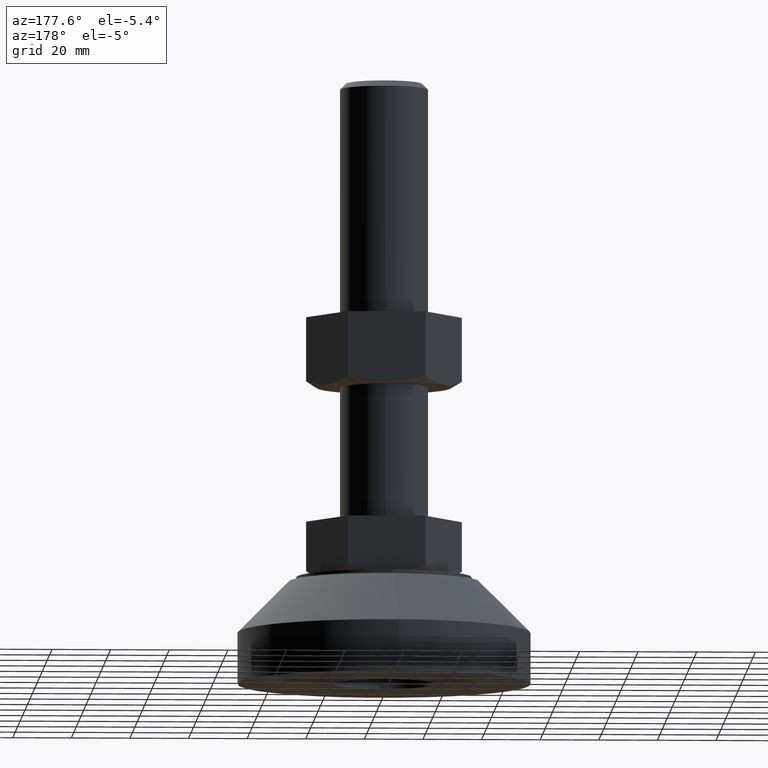
[diagram: clean part render]
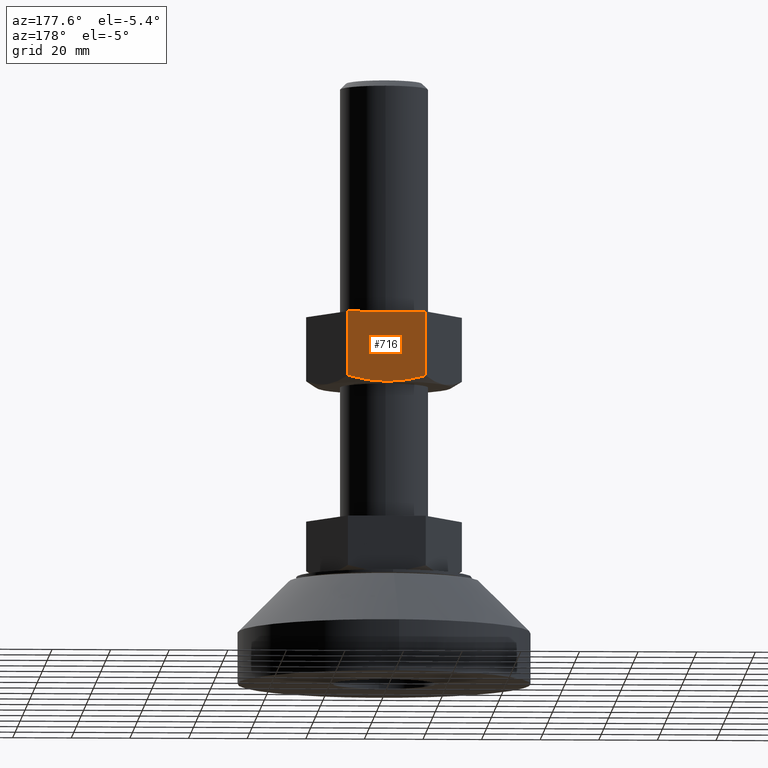
[diagram: same view with one face highlighted and labeled with its STEP entity id]
A machine part, auxiliary view. The second image highlights one B-rep face of the part: STEP entity #716.
In plain terms, the highlighted face is a freeform B-spline surface patch.
Its self-contained STEP definition (entity closure, byte-faithful):
#224=CARTESIAN_POINT('',(2.042810E-013,23.000000000623249,101.500000000000000));
#225=VERTEX_POINT('',#224);
#455=CARTESIAN_POINT('',(13.279056191221340,23.000000000001101,103.554277141584390));
#456=VERTEX_POINT('',#455);
#457=CARTESIAN_POINT('',(13.279056191221340,23.000000000001101,103.554277141584390));
#458=CARTESIAN_POINT('',(12.205800248851240,23.000000000000352,103.244454837966300));
#459=CARTESIAN_POINT('',(11.125465257783240,23.000000000000352,102.960680903132800));
#460=CARTESIAN_POINT('',(8.947244764019910,23.000000000000352,102.457712642780390));
#461=CARTESIAN_POINT('',(7.849348172439583,23.000000000000359,102.238559120394400));
#462=CARTESIAN_POINT('',(6.186543639268784,23.000000000000352,101.968554628545310));
#463=CARTESIAN_POINT('',(5.351149180212969,23.000000000000341,101.848242223892600));
#464=CARTESIAN_POINT('',(4.509252360460251,23.000000000000359,101.751856182319600));
#465=CARTESIAN_POINT('',(3.946488721711113,23.000000000000359,101.693114944886700));
#466=CARTESIAN_POINT('',(3.664036735735808,23.000000000000359,101.666477430208700));
#467=CARTESIAN_POINT('',(2.252219217077328,23.000000000000359,101.547906682500200));
#468=CARTESIAN_POINT('',(1.126312481440901,23.000000000000359,101.500112880030400));
#469=CARTESIAN_POINT('',(0.002666415532071,23.000000000000359,101.500000066566700));
#470=CARTESIAN_POINT('',(0.001333205666001,23.000000000000359,101.499999999971490));
#471=CARTESIAN_POINT('',(8.691602E-010,23.000000000000359,101.500000000631200));
#472=B_SPLINE_CURVE_WITH_KNOTS('',3,(#457,#458,#459,#460,#461,#462,#463,#464,#465,#466,#467,#468,#469,#470,#471),.UNSPECIFIED.,.F.,.U.,(4,2,2,1,2,2,2,4),(0.499851510328155,0.624851510328155,0.749851510328155,0.812351510328155,0.843601510328155,0.874851510328154,0.999851510328154,1.0),.UNSPECIFIED.);
#473=EDGE_CURVE('',#456,#225,#472,.T.);
#508=CARTESIAN_POINT('',(-13.279056191431479,22.999999999879549,103.554277141584390));
#509=VERTEX_POINT('',#508);
#523=CARTESIAN_POINT('',(2.042810E-013,23.000000000623249,101.500000000000000));
#524=CARTESIAN_POINT('',(-1.120971110958171,23.000000000000359,101.500000555368900));
#525=CARTESIAN_POINT('',(-2.238358478079394,23.000000000000359,101.547547692240400));
#526=CARTESIAN_POINT('',(-4.467642062914527,23.000000000000352,101.733182680897500));
#527=CARTESIAN_POINT('',(-5.579535230947152,23.000000000000359,101.871310993700110));
#528=CARTESIAN_POINT('',(-7.242781216697633,23.000000000000352,102.139450308948000));
#529=CARTESIAN_POINT('',(-7.796433117202974,23.000000000000359,102.238958705124800));
#530=CARTESIAN_POINT('',(-8.902316039262361,23.000000000000352,102.456826715643500));
#531=CARTESIAN_POINT('',(-9.454778101187971,23.000000000000359,102.575237493237400));
#532=CARTESIAN_POINT('',(-11.108759384440299,23.000000000000359,102.956187111525000));
#533=CARTESIAN_POINT('',(-12.198869944586020,23.000000000000359,103.242454231446600));
#534=CARTESIAN_POINT('',(-13.279056191410360,23.000000000000352,103.554277141638810));
#535=B_SPLINE_CURVE_WITH_KNOTS('',3,(#523,#524,#525,#526,#527,#528,#529,#530,#531,#532,#533,#534),.UNSPECIFIED.,.F.,.U.,(4,2,2,2,2,4),(0.0,0.124851510297544,0.249851510297543,0.312351510297543,0.374851510297543,0.499851510297544),.UNSPECIFIED.);
#536=EDGE_CURVE('',#225,#509,#535,.T.);
#603=CARTESIAN_POINT('',(13.279056191361621,23.000000000000352,125.500000000000000));
#604=VERTEX_POINT('',#603);
#610=CARTESIAN_POINT('',(-13.279056191360960,23.000000000000352,125.500000000000000));
#611=VERTEX_POINT('',#610);
#612=CARTESIAN_POINT('',(13.279056191361621,23.000000000000352,125.500000000000000));
#613=CARTESIAN_POINT('',(-13.279056191360960,23.000000000000352,125.500000000000000));
#614=QUASI_UNIFORM_CURVE('',1,(#612,#613),.UNSPECIFIED.,.F.,.U.);
#615=EDGE_CURVE('',#604,#611,#614,.T.);
#688=CARTESIAN_POINT('',(-13.279056191431479,22.999999999879549,103.554277141584390));
#689=CARTESIAN_POINT('',(-13.279056191360960,23.000000000000352,125.500000000000000));
#690=QUASI_UNIFORM_CURVE('',1,(#688,#689),.UNSPECIFIED.,.F.,.U.);
#691=EDGE_CURVE('',#509,#611,#690,.T.);
#700=CARTESIAN_POINT('',(-14.605633853477221,23.000000000000352,100.301200046516600));
#701=CARTESIAN_POINT('',(-14.605633853477221,23.000000000000352,126.698800597213510));
#702=CARTESIAN_POINT('',(14.605634565751441,23.000000000000352,100.301200046516600));
#703=CARTESIAN_POINT('',(14.605634565751441,23.000000000000352,126.698800597213510));
#704=B_SPLINE_SURFACE_WITH_KNOTS('',1,1,((#700,#702),(#701,#703)),.UNSPECIFIED.,.F.,.F.,.U.,(2,2),(2,2),(0.0,26.397600550696868),(0.0,29.211268419228670),.UNSPECIFIED.);
#705=CARTESIAN_POINT('',(13.279056191221340,23.000000000001101,103.554277141584390));
#706=CARTESIAN_POINT('',(13.279056191361621,23.000000000000352,125.500000000000000));
#707=QUASI_UNIFORM_CURVE('',1,(#705,#706),.UNSPECIFIED.,.F.,.U.);
#708=EDGE_CURVE('',#456,#604,#707,.T.);
#709=ORIENTED_EDGE('',*,*,#708,.F.);
#710=ORIENTED_EDGE('',*,*,#473,.T.);
#711=ORIENTED_EDGE('',*,*,#536,.T.);
#712=ORIENTED_EDGE('',*,*,#691,.T.);
#713=ORIENTED_EDGE('',*,*,#615,.F.);
#714=EDGE_LOOP('',(#709,#710,#711,#712,#713));
#715=FACE_OUTER_BOUND('',#714,.T.);
#716=ADVANCED_FACE('',(#715),#704,.T.);